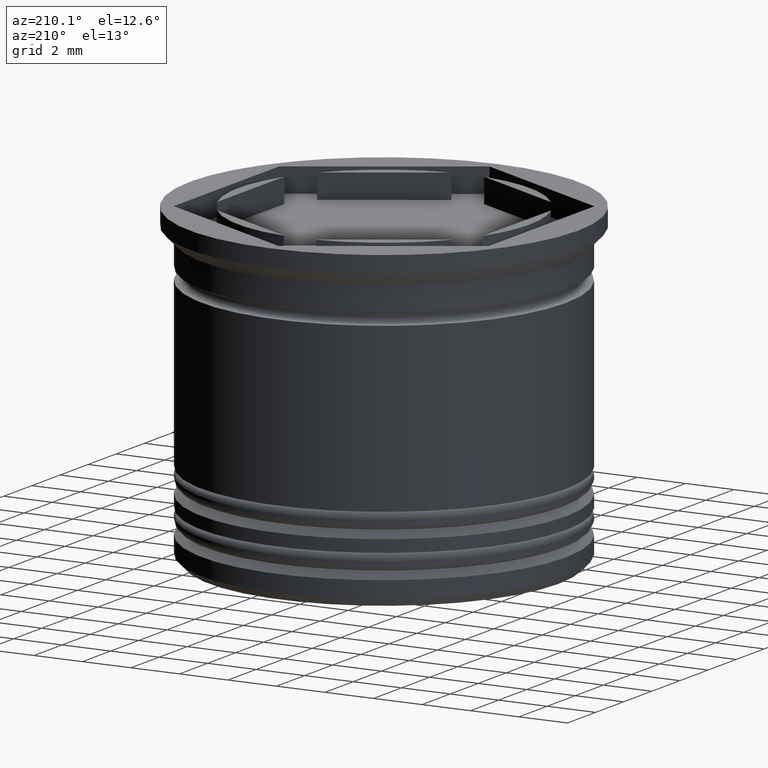
[diagram: clean part render]
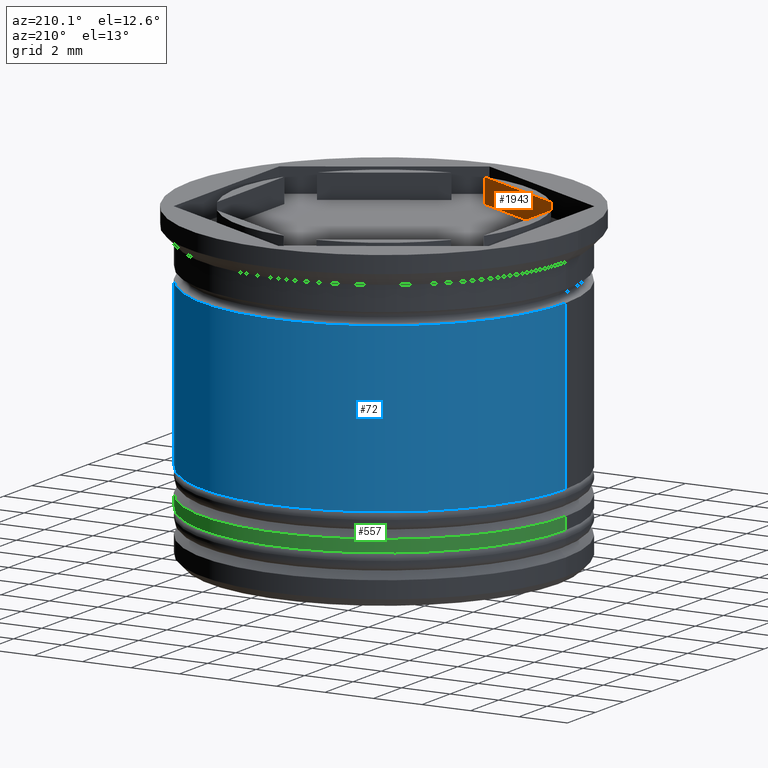
[diagram: same view with three faces highlighted in distinct colors, each labeled with its STEP entity id]
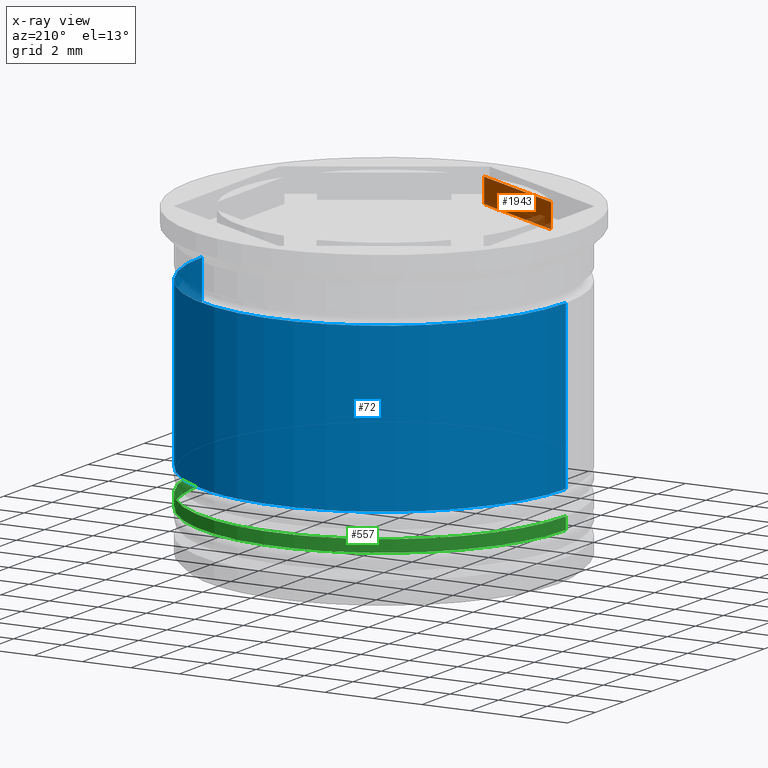
[diagram: x-ray of the same camera — body ghosted, the three highlighted faces saturated]
A machine part, auxiliary view with three faces highlighted in distinct colors.
The next image is the same camera in x-ray (body ghosted, the three faces saturated) — at least one of them is partly hidden behind the body in this view.
Their STEP definitions:

[orange] entity #1943 — the highlighted planar face has unit normal (-0.5, -0.866, 0).
#70 = DIRECTION ( 'NONE',  ( -0.5000000000000001110, -0.8660254037844387076, 0.000000000000000000 ) ) ;
#104 = DIRECTION ( 'NONE',  ( -0.000000000000000000, -0.000000000000000000, -1.000000000000000000 ) ) ;
#165 = EDGE_LOOP ( 'NONE', ( #1565, #1866, #724, #1030 ) ) ;
#226 = CARTESIAN_POINT ( 'NONE',  ( -0.6733440342704841708, -5.962097601642594391, -1.000000000000000888 ) ) ;
#235 = CARTESIAN_POINT ( 'NONE',  ( -4.826655965729519160, -3.564181839986236611, -1.000000000000000888 ) ) ;
#257 = LINE ( 'NONE', #582, #1489 ) ;
#326 = EDGE_CURVE ( 'NONE', #1142, #1627, #860, .T. ) ;
#357 = FACE_OUTER_BOUND ( 'NONE', #165, .T. ) ;
#358 = VERTEX_POINT ( 'NONE', #226 ) ;
#438 = VECTOR ( 'NONE', #1905, 999.9999999999998863 ) ;
#450 = VERTEX_POINT ( 'NONE', #235 ) ;
#495 = CARTESIAN_POINT ( 'NONE',  ( -5.500000000000001776, -3.175426480542942631, -1.000000000000000888 ) ) ;
#582 = CARTESIAN_POINT ( 'NONE',  ( -0.6733440342704825055, -5.962097601642592615, 16.97056274847714263 ) ) ;
#677 = DIRECTION ( 'NONE',  ( -0.8660254037844387076, 0.5000000000000001110, 0.000000000000000000 ) ) ;
#695 = DIRECTION ( 'NONE',  ( 0.8660254037844385966, -0.5000000000000000000, 0.000000000000000000 ) ) ;
#724 = ORIENTED_EDGE ( 'NONE', *, *, #1463, .T. ) ;
#836 = AXIS2_PLACEMENT_3D ( 'NONE', #1440, #70, #695 ) ;
#860 = LINE ( 'NONE', #1484, #438 ) ;
#878 = CARTESIAN_POINT ( 'NONE',  ( -4.826655965729519160, -3.564181839986234390, 16.97056274847714263 ) ) ;
#973 = EDGE_CURVE ( 'NONE', #358, #1627, #257, .T. ) ;
#1030 = ORIENTED_EDGE ( 'NONE', *, *, #1223, .F. ) ;
#1129 = VECTOR ( 'NONE', #104, 1000.000000000000000 ) ;
#1142 = VERTEX_POINT ( 'NONE', #1183 ) ;
#1183 = CARTESIAN_POINT ( 'NONE',  ( -4.826655965729518272, -3.564181839986234834, 0.000000000000000000 ) ) ;
#1223 = EDGE_CURVE ( 'NONE', #1142, #450, #1632, .T. ) ;
#1245 = CARTESIAN_POINT ( 'NONE',  ( -0.6733440342704833936, -5.962097601642592615, 0.000000000000000000 ) ) ;
#1440 = CARTESIAN_POINT ( 'NONE',  ( -5.500000000000001776, -3.175426480542942631, -17.80277754817141656 ) ) ;
#1463 = EDGE_CURVE ( 'NONE', #358, #450, #1876, .T. ) ;
#1478 = PLANE ( 'NONE',  #836 ) ;
#1484 = CARTESIAN_POINT ( 'NONE',  ( -2.750000000000000888, -4.763139720814414169, 0.000000000000000000 ) ) ;
#1489 = VECTOR ( 'NONE', #1506, 1000.000000000000000 ) ;
#1506 = DIRECTION ( 'NONE',  ( 0.000000000000000000, 0.000000000000000000, 1.000000000000000000 ) ) ;
#1565 = ORIENTED_EDGE ( 'NONE', *, *, #326, .T. ) ;
#1576 = VECTOR ( 'NONE', #677, 999.9999999999998863 ) ;
#1627 = VERTEX_POINT ( 'NONE', #1245 ) ;
#1632 = LINE ( 'NONE', #878, #1129 ) ;
#1866 = ORIENTED_EDGE ( 'NONE', *, *, #973, .F. ) ;
#1876 = LINE ( 'NONE', #495, #1576 ) ;
#1905 = DIRECTION ( 'NONE',  ( 0.8660254037844387076, -0.5000000000000001110, 0.000000000000000000 ) ) ;
#1943 = ADVANCED_FACE ( 'NONE', ( #357 ), #1478, .F. ) ;

[blue] entity #72 — the highlighted cylindrical surface (partial cylindrical patch) has radius 7.5 mm, axis along (-0, -0, 1).
#56 = DIRECTION ( 'NONE',  ( -0.000000000000000000, -0.000000000000000000, 1.000000000000000000 ) ) ;
#72 = ADVANCED_FACE ( 'NONE', ( #861 ), #391, .T. ) ;
#79 = LINE ( 'NONE', #1937, #276 ) ;
#179 = EDGE_CURVE ( 'NONE', #832, #1589, #791, .T. ) ;
#212 = AXIS2_PLACEMENT_3D ( 'NONE', #1218, #1843, #451 ) ;
#265 = CARTESIAN_POINT ( 'NONE',  ( 0.000000000000000000, 0.000000000000000000, -2.700000000000000178 ) ) ;
#276 = VECTOR ( 'NONE', #1792, 1000.000000000000000 ) ;
#364 = DIRECTION ( 'NONE',  ( 1.000000000000000000, 0.000000000000000000, 0.000000000000000000 ) ) ;
#365 = AXIS2_PLACEMENT_3D ( 'NONE', #1644, #1188, #1026 ) ;
#391 = CYLINDRICAL_SURFACE ( 'NONE', #365, 7.500000000000000000 ) ;
#395 = EDGE_LOOP ( 'NONE', ( #1093, #1960, #544, #1727 ) ) ;
#451 = DIRECTION ( 'NONE',  ( 1.000000000000000000, 0.000000000000000000, 0.000000000000000000 ) ) ;
#544 = ORIENTED_EDGE ( 'NONE', *, *, #1718, .F. ) ;
#634 = CIRCLE ( 'NONE', #212, 7.500000000000001776 ) ;
#671 = DIRECTION ( 'NONE',  ( -0.000000000000000000, -0.000000000000000000, 1.000000000000000000 ) ) ;
#770 = AXIS2_PLACEMENT_3D ( 'NONE', #265, #56, #364 ) ;
#779 = EDGE_CURVE ( 'NONE', #1213, #1714, #79, .T. ) ;
#791 = LINE ( 'NONE', #1279, #1805 ) ;
#832 = VERTEX_POINT ( 'NONE', #1810 ) ;
#861 = FACE_OUTER_BOUND ( 'NONE', #395, .T. ) ;
#1026 = DIRECTION ( 'NONE',  ( 1.000000000000000000, 0.000000000000000000, 0.000000000000000000 ) ) ;
#1093 = ORIENTED_EDGE ( 'NONE', *, *, #1790, .T. ) ;
#1188 = DIRECTION ( 'NONE',  ( -0.000000000000000000, -0.000000000000000000, 1.000000000000000000 ) ) ;
#1213 = VERTEX_POINT ( 'NONE', #1942 ) ;
#1218 = CARTESIAN_POINT ( 'NONE',  ( 0.000000000000000000, 0.000000000000000000, -9.500000000000000000 ) ) ;
#1279 = CARTESIAN_POINT ( 'NONE',  ( 7.500000000000000000, 0.000000000000000000, 0.000000000000000000 ) ) ;
#1381 = CARTESIAN_POINT ( 'NONE',  ( 7.499999999999998224, 0.000000000000000000, -2.700000000000000178 ) ) ;
#1589 = VERTEX_POINT ( 'NONE', #1381 ) ;
#1606 = CARTESIAN_POINT ( 'NONE',  ( -7.499999999999998224, 9.184850993605145972E-16, -2.700000000000000178 ) ) ;
#1644 = CARTESIAN_POINT ( 'NONE',  ( 0.000000000000000000, 0.000000000000000000, 0.000000000000000000 ) ) ;
#1714 = VERTEX_POINT ( 'NONE', #1606 ) ;
#1718 = EDGE_CURVE ( 'NONE', #1589, #1714, #1924, .T. ) ;
#1727 = ORIENTED_EDGE ( 'NONE', *, *, #179, .F. ) ;
#1790 = EDGE_CURVE ( 'NONE', #832, #1213, #634, .T. ) ;
#1792 = DIRECTION ( 'NONE',  ( -0.000000000000000000, -0.000000000000000000, 1.000000000000000000 ) ) ;
#1805 = VECTOR ( 'NONE', #671, 1000.000000000000000 ) ;
#1810 = CARTESIAN_POINT ( 'NONE',  ( 7.500000000000001776, 0.000000000000000000, -9.500000000000000000 ) ) ;
#1843 = DIRECTION ( 'NONE',  ( -0.000000000000000000, -0.000000000000000000, 1.000000000000000000 ) ) ;
#1924 = CIRCLE ( 'NONE', #770, 7.499999999999998224 ) ;
#1937 = CARTESIAN_POINT ( 'NONE',  ( -7.500000000000000000, 9.184850993605147944E-16, 0.000000000000000000 ) ) ;
#1942 = CARTESIAN_POINT ( 'NONE',  ( -7.500000000000001776, 9.184850993605149917E-16, -9.500000000000000000 ) ) ;
#1960 = ORIENTED_EDGE ( 'NONE', *, *, #779, .T. ) ;

[green] entity #557 — the highlighted cylindrical surface (partial cylindrical patch) has radius 7.5 mm, axis along (-0, -0, 1).
#126 = DIRECTION ( 'NONE',  ( 0.000000000000000000, 0.000000000000000000, -1.000000000000000000 ) ) ;
#153 = DIRECTION ( 'NONE',  ( -0.000000000000000000, -0.000000000000000000, 1.000000000000000000 ) ) ;
#207 = LINE ( 'NONE', #645, #795 ) ;
#215 = VERTEX_POINT ( 'NONE', #321 ) ;
#319 = ORIENTED_EDGE ( 'NONE', *, *, #1717, .T. ) ;
#321 = CARTESIAN_POINT ( 'NONE',  ( 7.500000000000001776, 0.000000000000000000, -10.50000000000000355 ) ) ;
#374 = VERTEX_POINT ( 'NONE', #879 ) ;
#411 = CARTESIAN_POINT ( 'NONE',  ( -7.500000000000001776, 9.184850993605149917E-16, 0.000000000000000000 ) ) ;
#437 = CIRCLE ( 'NONE', #494, 7.500000000000001776 ) ;
#466 = CARTESIAN_POINT ( 'NONE',  ( 0.000000000000000000, 0.000000000000000000, -11.00000000000000000 ) ) ;
#494 = AXIS2_PLACEMENT_3D ( 'NONE', #1824, #126, #1081 ) ;
#530 = CARTESIAN_POINT ( 'NONE',  ( 0.000000000000000000, 0.000000000000000000, 0.000000000000000000 ) ) ;
#533 = DIRECTION ( 'NONE',  ( -0.000000000000000000, -0.000000000000000000, 1.000000000000000000 ) ) ;
#557 = ADVANCED_FACE ( 'NONE', ( #1318 ), #1914, .T. ) ;
#572 = ORIENTED_EDGE ( 'NONE', *, *, #886, .F. ) ;
#575 = AXIS2_PLACEMENT_3D ( 'NONE', #466, #1230, #1830 ) ;
#600 = EDGE_CURVE ( 'NONE', #1772, #1853, #1607, .T. ) ;
#645 = CARTESIAN_POINT ( 'NONE',  ( 7.500000000000001776, 0.000000000000000000, 0.000000000000000000 ) ) ;
#725 = DIRECTION ( 'NONE',  ( -0.000000000000000000, -0.000000000000000000, 1.000000000000000000 ) ) ;
#795 = VECTOR ( 'NONE', #533, 1000.000000000000000 ) ;
#838 = LINE ( 'NONE', #411, #1075 ) ;
#879 = CARTESIAN_POINT ( 'NONE',  ( -7.500000000000001776, 9.184850993605149917E-16, -10.50000000000000355 ) ) ;
#886 = EDGE_CURVE ( 'NONE', #1772, #215, #207, .T. ) ;
#968 = ORIENTED_EDGE ( 'NONE', *, *, #600, .T. ) ;
#1075 = VECTOR ( 'NONE', #725, 1000.000000000000000 ) ;
#1081 = DIRECTION ( 'NONE',  ( -1.000000000000000000, 0.000000000000000000, 0.000000000000000000 ) ) ;
#1095 = DIRECTION ( 'NONE',  ( 1.000000000000000000, 0.000000000000000000, 0.000000000000000000 ) ) ;
#1227 = CARTESIAN_POINT ( 'NONE',  ( -7.500000000000001776, 9.184850993605149917E-16, -11.00000000000000000 ) ) ;
#1230 = DIRECTION ( 'NONE',  ( -0.000000000000000000, -0.000000000000000000, 1.000000000000000000 ) ) ;
#1318 = FACE_OUTER_BOUND ( 'NONE', #1367, .T. ) ;
#1349 = EDGE_CURVE ( 'NONE', #374, #215, #437, .T. ) ;
#1367 = EDGE_LOOP ( 'NONE', ( #968, #319, #1407, #572 ) ) ;
#1407 = ORIENTED_EDGE ( 'NONE', *, *, #1349, .T. ) ;
#1417 = AXIS2_PLACEMENT_3D ( 'NONE', #530, #153, #1095 ) ;
#1607 = CIRCLE ( 'NONE', #575, 7.500000000000001776 ) ;
#1717 = EDGE_CURVE ( 'NONE', #1853, #374, #838, .T. ) ;
#1772 = VERTEX_POINT ( 'NONE', #1826 ) ;
#1824 = CARTESIAN_POINT ( 'NONE',  ( 0.000000000000000000, 0.000000000000000000, -10.50000000000000355 ) ) ;
#1826 = CARTESIAN_POINT ( 'NONE',  ( 7.500000000000001776, 0.000000000000000000, -11.00000000000000000 ) ) ;
#1830 = DIRECTION ( 'NONE',  ( 1.000000000000000000, 0.000000000000000000, 0.000000000000000000 ) ) ;
#1853 = VERTEX_POINT ( 'NONE', #1227 ) ;
#1914 = CYLINDRICAL_SURFACE ( 'NONE', #1417, 7.500000000000001776 ) ;